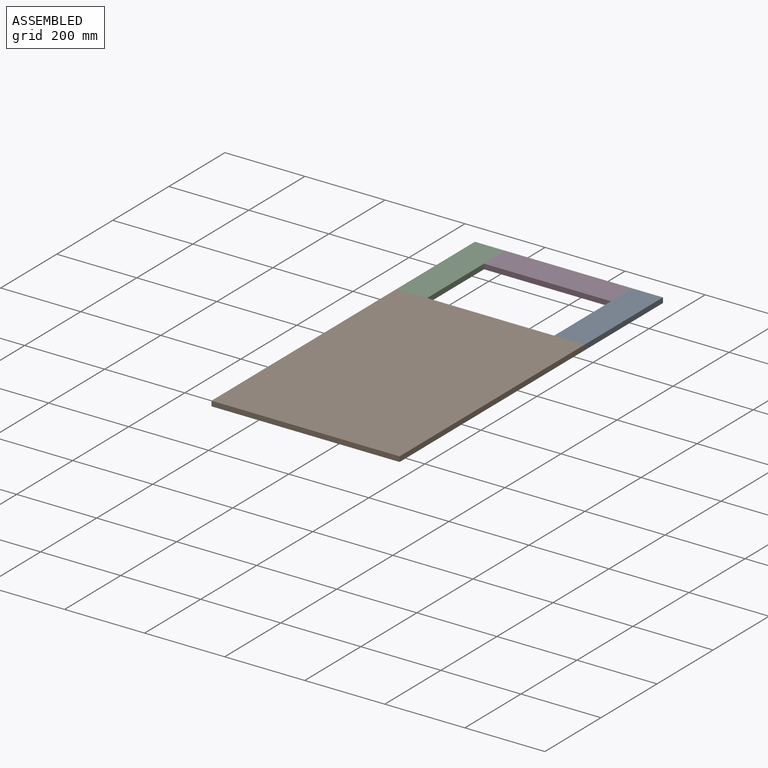
[diagram: assembled view]
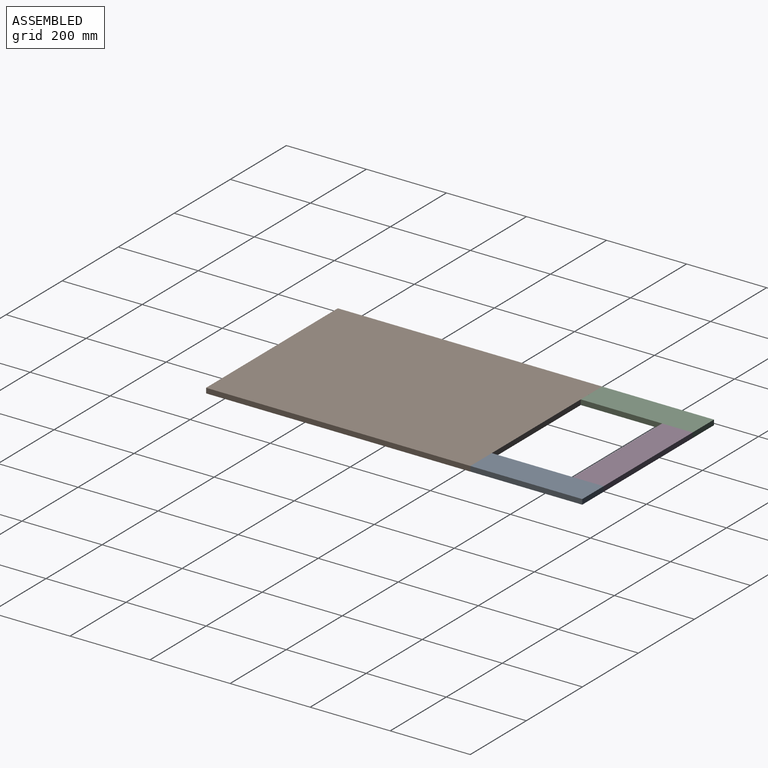
[diagram: assembled view, second angle]
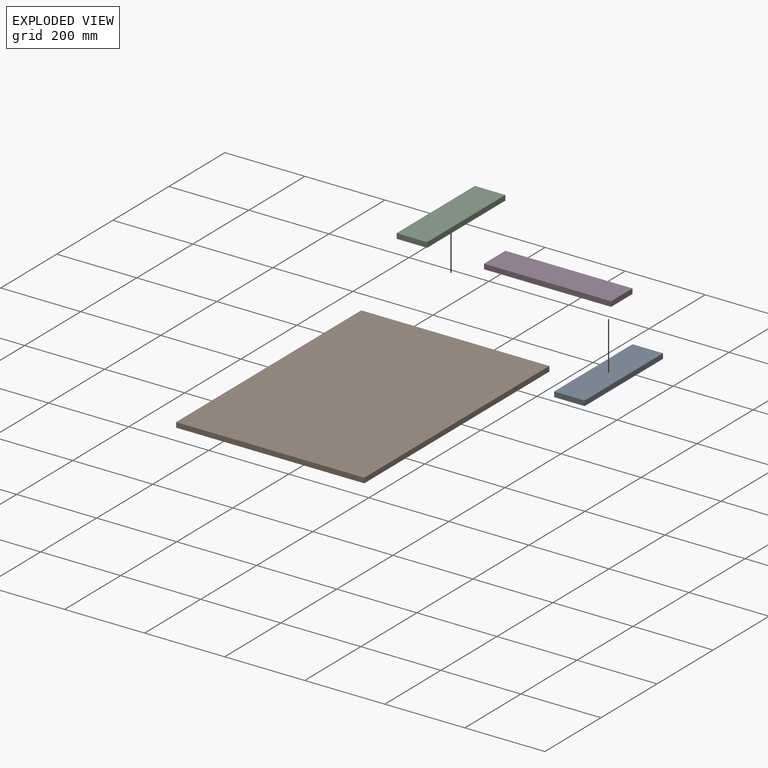
[diagram: exploded view]
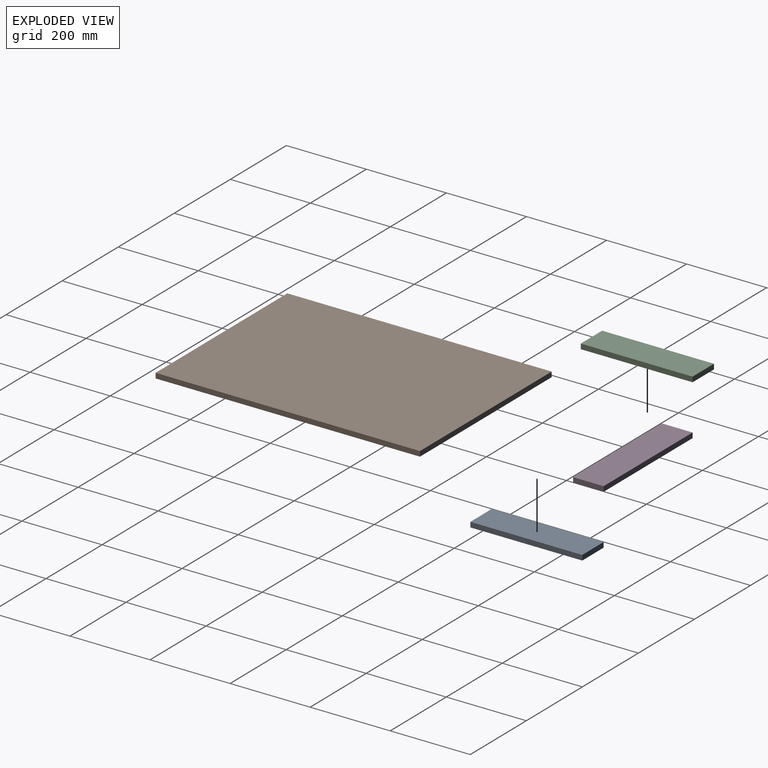
[diagram: exploded view, second angle]
ASSEMBLY  parts=4 mates=3
PART A: 6 faces, bbox 76.2x279.4x12.7 mm
  f0: plane 279.4x12.7mm, normal (-1,0,0), area 3548.4mm2, adj f1,f3,f4,f5
  f1: plane 76.2x12.7mm, normal (0,-1,0), area 967.7mm2, adj f0,f2,f4,f5
  f2: plane 279.4x12.7mm, normal (1,0,0), area 3548.4mm2, adj f1,f3,f4,f5
  f3: plane 76.2x12.7mm, normal (0,1,0), area 967.7mm2, adj f0,f2,f4,f5
  f4: plane 279.4x76.2mm, normal (0,0,1), area 21290.3mm2, adj f0,f1,f2,f3
  f5: plane 279.4x76.2mm, normal (0,0,-1), area 21290.3mm2, adj f0,f1,f2,f3
PART B: 6 faces, bbox 660.4x469.9x12.7 mm
  f0: plane 469.9x12.7mm, normal (-1,0,0), area 5967.7mm2, adj f1,f3,f4,f5
  f1: plane 660.4x12.7mm, normal (0,-1,0), area 8387.1mm2, adj f0,f2,f4,f5
  f2: plane 469.9x12.7mm, normal (1,0,0), area 5967.7mm2, adj f1,f3,f4,f5
  f3: plane 660.4x12.7mm, normal (0,1,0), area 8387.1mm2, adj f0,f2,f4,f5
  f4: plane 660.4x469.9mm, normal (0,0,1), area 310322mm2, adj f0,f1,f2,f3
  f5: plane 660.4x469.9mm, normal (0,0,-1), area 310322mm2, adj f0,f1,f2,f3
PART C: same geometry as A
PART D: 6 faces, bbox 76.2x317.5x12.7 mm
  f0: plane 317.5x12.7mm, normal (-1,0,0), area 4032.3mm2, adj f1,f3,f4,f5
  f1: plane 76.2x12.7mm, normal (0,-1,0), area 967.7mm2, adj f0,f2,f4,f5
  f2: plane 317.5x12.7mm, normal (1,0,0), area 4032.3mm2, adj f1,f3,f4,f5
  f3: plane 76.2x12.7mm, normal (0,1,0), area 967.7mm2, adj f0,f2,f4,f5
  f4: plane 317.5x76.2mm, normal (0,0,1), area 24193.5mm2, adj f0,f1,f2,f3
  f5: plane 317.5x76.2mm, normal (0,0,-1), area 24193.5mm2, adj f0,f1,f2,f3
PLACE A rot(axis=(0,1,0),180deg) t=(526.76,68.46,12.7)mm
PLACE B rot(axis=(0.71,-0.71,0),180deg) t=(56.86,93.86,12.7)mm
PLACE C t=(56.86,68.46,0)mm
PLACE D rot(axis=(0,0,-1),90deg) t=(450.56,220.86,0)mm
MATE fastened D.f3 <-> A.f2  axis (1,0,0) through (450.56,68.46,0)mm
MATE fastened B.f0 <-> A.f1  axis (0,1,0) through (526.76,-210.94,0)mm
MATE fastened B.f0 <-> C.f1  axis (0,1,0) through (56.86,-210.94,0)mm
